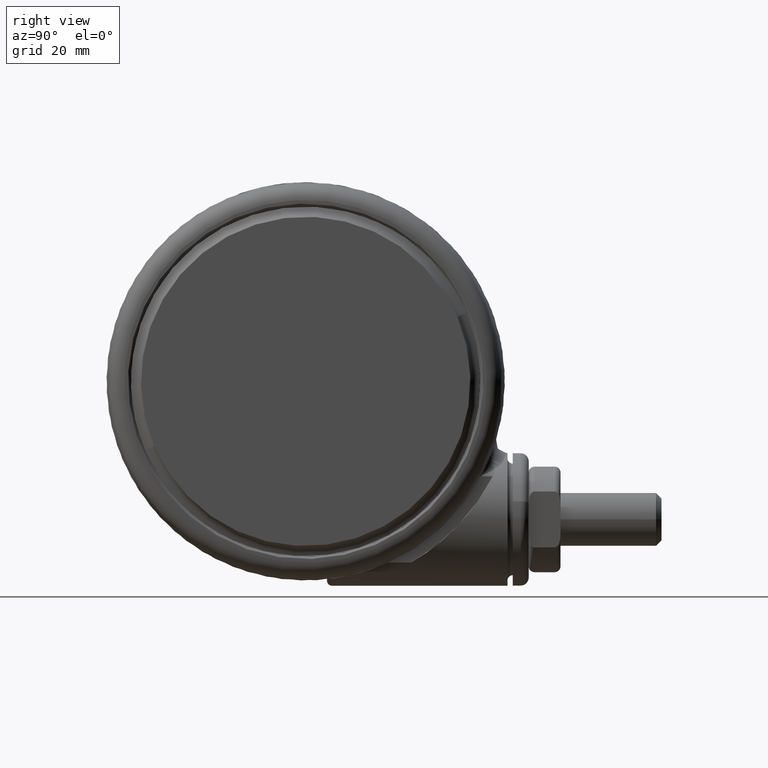
[diagram: clean part render]
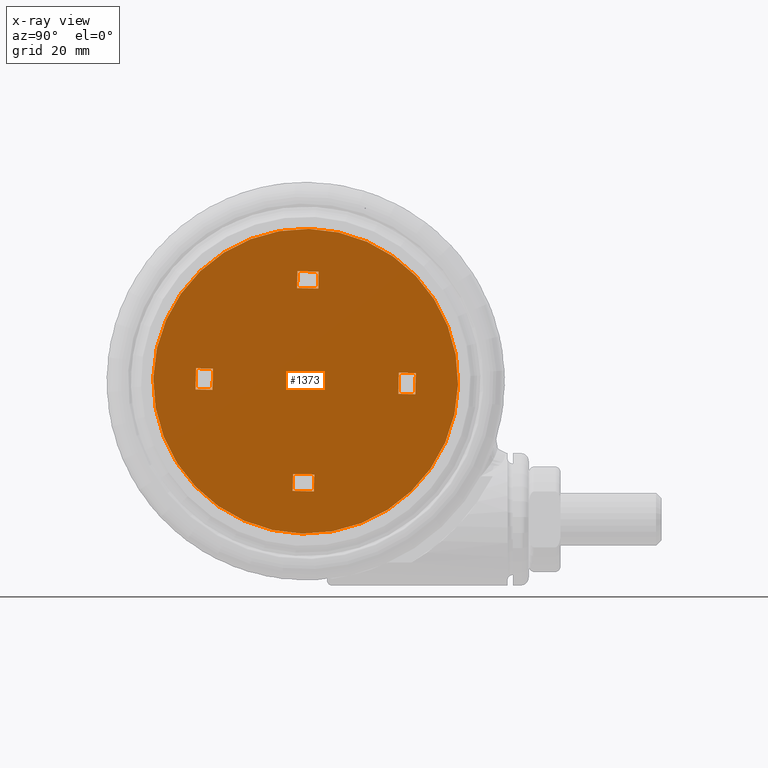
[diagram: x-ray — body ghosted, one internal face saturated and labeled with its STEP entity id]
A machine part, right view, then the same camera in x-ray: the body is ghosted and one INTERNAL B-rep face — a face not visible from any outside direction — is saturated and labeled: STEP entity #1373.
In plain terms, the highlighted planar face has unit normal (-1, 0, 0).
Its self-contained STEP definition (entity closure, byte-faithful):
#628 = VECTOR ( 'NONE', #2853, 1000.000000000000100 ) ;
#698 = VERTEX_POINT ( 'NONE', #54919 ) ;
#1235 = CARTESIAN_POINT ( 'NONE',  ( -5.386768670268367000, -16.76999473145464800, -46.19999999999985400 ) ) ;
#1260 = VECTOR ( 'NONE', #27845, 1000.000000000000100 ) ;
#1373 = ADVANCED_FACE ( 'NONE', ( #53502, #41621, #7296, #17824, #19211 ), #26613, .F. ) ;
#1841 = ORIENTED_EDGE ( 'NONE', *, *, #33197, .T. ) ;
#2058 = EDGE_LOOP ( 'NONE', ( #44789, #1841, #46014, #36267 ) ) ;
#2202 = CARTESIAN_POINT ( 'NONE',  ( -18.03803863379574300, 10.34983875457449200, -46.19999999999985400 ) ) ;
#2546 = DIRECTION ( 'NONE',  ( 0.4119530739487650100, 0.9112050619175484600, 0.0000000000000000000 ) ) ;
#2723 = LINE ( 'NONE', #17350, #48980 ) ;
#2853 = DIRECTION ( 'NONE',  ( 0.9112050619175470200, -0.4119530739487681800, -0.0000000000000000000 ) ) ;
#2865 = VERTEX_POINT ( 'NONE', #46619 ) ;
#4197 = DIRECTION ( 'NONE',  ( -0.9112050619175442500, 0.4119530739487745600, -0.0000000000000000000 ) ) ;
#4211 = CARTESIAN_POINT ( 'NONE',  ( -10.34983875457461800, -18.03803863379573600, -46.19999999999985400 ) ) ;
#4230 = CARTESIAN_POINT ( 'NONE',  ( -16.76999473145465200, 5.386768670268250700, -46.19999999999985400 ) ) ;
#4300 = DIRECTION ( 'NONE',  ( 0.4119530739487650100, 0.9112050619175484600, 0.0000000000000000000 ) ) ;
#4673 = ORIENTED_EDGE ( 'NONE', *, *, #35558, .T. ) ;
#5007 = CARTESIAN_POINT ( 'NONE',  ( -16.76999473145465200, 5.386768670268250700, -46.19999999999985400 ) ) ;
#5446 = VERTEX_POINT ( 'NONE', #5007 ) ;
#5802 = VERTEX_POINT ( 'NONE', #53313 ) ;
#6033 = CARTESIAN_POINT ( 'NONE',  ( -2.081668171172168500E-014, -4.163336342344337000E-014, -46.19999999999985400 ) ) ;
#6046 = VERTEX_POINT ( 'NONE', #1235 ) ;
#6818 = CARTESIAN_POINT ( 'NONE',  ( 10.34983875457470900, 18.03803863379559000, -46.19999999999985400 ) ) ;
#6892 = AXIS2_PLACEMENT_3D ( 'NONE', #6033, #37373, #10546 ) ;
#7296 = FACE_BOUND ( 'NONE', #42092, .T. ) ;
#7697 = LINE ( 'NONE', #51248, #19616 ) ;
#7939 = LINE ( 'NONE', #31039, #31785 ) ;
#8374 = VECTOR ( 'NONE', #49545, 1000.000000000000100 ) ;
#9231 = CARTESIAN_POINT ( 'NONE',  ( -17.12683357187819400, 9.937885680625726100, -46.19999999999985400 ) ) ;
#10207 = LINE ( 'NONE', #18998, #44579 ) ;
#10546 = DIRECTION ( 'NONE',  ( 0.4119530739487650100, 0.9112050619175484600, 0.0000000000000000000 ) ) ;
#10694 = VERTEX_POINT ( 'NONE', #24780 ) ;
#11486 = CARTESIAN_POINT ( 'NONE',  ( 18.03803863379570400, -10.34983875457457500, -46.19999999999985400 ) ) ;
#11568 = CARTESIAN_POINT ( 'NONE',  ( -9.031588917938561800, -15.12218243565958900, -46.19999999999985400 ) ) ;
#11920 = CARTESIAN_POINT ( 'NONE',  ( -5.386768670268367000, -16.76999473145464800, -46.19999999999985400 ) ) ;
#12027 = VECTOR ( 'NONE', #53773, 1000.000000000000100 ) ;
#12099 = ORIENTED_EDGE ( 'NONE', *, *, #24574, .T. ) ;
#12249 = CARTESIAN_POINT ( 'NONE',  ( 6.705018506904514700, 19.68585092959065400, -46.19999999999985400 ) ) ;
#12480 = ORIENTED_EDGE ( 'NONE', *, *, #40452, .F. ) ;
#12527 = EDGE_LOOP ( 'NONE', ( #54499, #17405 ) ) ;
#12888 = DIRECTION ( 'NONE',  ( 0.4119530739487742300, 0.9112050619175443600, 0.0000000000000000000 ) ) ;
#14197 = ORIENTED_EDGE ( 'NONE', *, *, #57391, .T. ) ;
#14529 = DIRECTION ( 'NONE',  ( 0.9112050619175485800, -0.4119530739487646800, 0.0000000000000000000 ) ) ;
#14679 = LINE ( 'NONE', #40286, #47545 ) ;
#15237 = LINE ( 'NONE', #6818, #28515 ) ;
#17350 = CARTESIAN_POINT ( 'NONE',  ( 9.937885680625933900, 17.12683357187804800, -46.19999999999985400 ) ) ;
#17405 = ORIENTED_EDGE ( 'NONE', *, *, #22421, .T. ) ;
#17476 = DIRECTION ( 'NONE',  ( 0.4119530739487650100, 0.9112050619175484600, -0.0000000000000000000 ) ) ;
#17759 = DIRECTION ( 'NONE',  ( -0.9112050619175470200, 0.4119530739487681800, -0.0000000000000000000 ) ) ;
#17824 = FACE_BOUND ( 'NONE', #2058, .T. ) ;
#18909 = LINE ( 'NONE', #9231, #8374 ) ;
#18998 = CARTESIAN_POINT ( 'NONE',  ( 17.12683357187815500, -9.937885680625809600, -46.19999999999985400 ) ) ;
#19211 = FACE_BOUND ( 'NONE', #54201, .T. ) ;
#19616 = VECTOR ( 'NONE', #28933, 1000.000000000000100 ) ;
#20869 = ORIENTED_EDGE ( 'NONE', *, *, #43993, .F. ) ;
#21102 = VERTEX_POINT ( 'NONE', #28609 ) ;
#22421 = EDGE_CURVE ( 'NONE', #5802, #46054, #48767, .T. ) ;
#22871 = EDGE_CURVE ( 'NONE', #46054, #5802, #41039, .T. ) ;
#23031 = LINE ( 'NONE', #11920, #628 ) ;
#23885 = LINE ( 'NONE', #31286, #12027 ) ;
#24574 = EDGE_CURVE ( 'NONE', #31820, #5446, #50526, .T. ) ;
#24780 = CARTESIAN_POINT ( 'NONE',  ( 18.03803863379570400, -10.34983875457457500, -46.19999999999985400 ) ) ;
#25124 = VECTOR ( 'NONE', #17759, 1000.000000000000100 ) ;
#25814 = VECTOR ( 'NONE', #51554, 1000.000000000000100 ) ;
#26613 = PLANE ( 'NONE',  #38507 ) ;
#27230 = EDGE_CURVE ( 'NONE', #53584, #21102, #42580, .T. ) ;
#27845 = DIRECTION ( 'NONE',  ( -0.9112050619175485800, 0.4119530739487646800, 0.0000000000000000000 ) ) ;
#28042 = CARTESIAN_POINT ( 'NONE',  ( 16.76999473145461300, -5.386768670268334200, -46.19999999999985400 ) ) ;
#28515 = VECTOR ( 'NONE', #33656, 1000.000000000000100 ) ;
#28609 = CARTESIAN_POINT ( 'NONE',  ( 5.386768670268434500, 16.76999473145451700, -46.19999999999985400 ) ) ;
#28619 = ORIENTED_EDGE ( 'NONE', *, *, #37642, .T. ) ;
#28933 = DIRECTION ( 'NONE',  ( 0.4119530739487650100, 0.9112050619175484600, -0.0000000000000000000 ) ) ;
#29377 = DIRECTION ( 'NONE',  ( -0.0000000000000000000, -0.0000000000000000000, 1.000000000000000000 ) ) ;
#31039 = CARTESIAN_POINT ( 'NONE',  ( 5.386768670268434500, 16.76999473145451700, -46.19999999999985400 ) ) ;
#31133 = DIRECTION ( 'NONE',  ( 0.0000000000000000000, 0.0000000000000000000, -1.000000000000000000 ) ) ;
#31286 = CARTESIAN_POINT ( 'NONE',  ( -9.937885680625848700, -17.12683357187818700, -46.19999999999985400 ) ) ;
#31785 = VECTOR ( 'NONE', #4197, 1000.000000000000100 ) ;
#31818 = VERTEX_POINT ( 'NONE', #35921 ) ;
#31820 = VERTEX_POINT ( 'NONE', #40427 ) ;
#32356 = CARTESIAN_POINT ( 'NONE',  ( 18.77464586767321500, -6.293065432955616600, -46.19999999999985400 ) ) ;
#32441 = CARTESIAN_POINT ( 'NONE',  ( 11.82305322232953600, 26.15158527703360400, -46.19999999999985400 ) ) ;
#32543 = EDGE_CURVE ( 'NONE', #698, #52043, #7697, .T. ) ;
#33197 = EDGE_CURVE ( 'NONE', #45719, #6046, #23031, .T. ) ;
#33656 = DIRECTION ( 'NONE',  ( 0.9112050619175442500, -0.4119530739487745600, -0.0000000000000000000 ) ) ;
#33936 = ORIENTED_EDGE ( 'NONE', *, *, #27230, .F. ) ;
#34536 = VERTEX_POINT ( 'NONE', #54382 ) ;
#35558 = EDGE_CURVE ( 'NONE', #53584, #31818, #15237, .T. ) ;
#35582 = DIRECTION ( 'NONE',  ( -0.4119530739487650100, -0.9112050619175484600, -0.0000000000000000000 ) ) ;
#35921 = CARTESIAN_POINT ( 'NONE',  ( 10.34983875457470900, 18.03803863379559000, -46.19999999999985400 ) ) ;
#36267 = ORIENTED_EDGE ( 'NONE', *, *, #41761, .T. ) ;
#36991 = VECTOR ( 'NONE', #17476, 1000.000000000000100 ) ;
#37023 = LINE ( 'NONE', #32356, #1260 ) ;
#37085 = LINE ( 'NONE', #4211, #25124 ) ;
#37373 = DIRECTION ( 'NONE',  ( -0.0000000000000000000, -0.0000000000000000000, 1.000000000000000000 ) ) ;
#37642 = EDGE_CURVE ( 'NONE', #54095, #21102, #7939, .T. ) ;
#38507 = AXIS2_PLACEMENT_3D ( 'NONE', #39980, #31133, #4300 ) ;
#38645 = VECTOR ( 'NONE', #35582, 1000.000000000000100 ) ;
#39167 = LINE ( 'NONE', #47086, #25814 ) ;
#39194 = CARTESIAN_POINT ( 'NONE',  ( -10.34983875457461800, -18.03803863379573600, -46.19999999999985400 ) ) ;
#39378 = CARTESIAN_POINT ( 'NONE',  ( 9.031588917938629300, 15.12218243565945600, -46.19999999999985400 ) ) ;
#39613 = EDGE_CURVE ( 'NONE', #45719, #55481, #23885, .T. ) ;
#39792 = VECTOR ( 'NONE', #53298, 1000.000000000000100 ) ;
#39852 = CARTESIAN_POINT ( 'NONE',  ( 6.293065432955740100, 18.77464586767311200, -46.19999999999985400 ) ) ;
#39980 = CARTESIAN_POINT ( 'NONE',  ( -2.081668171172168500E-014, -4.163336342344337000E-014, -46.19999999999985400 ) ) ;
#40286 = CARTESIAN_POINT ( 'NONE',  ( -18.77464586767325700, 6.293065432955533100, -46.19999999999985400 ) ) ;
#40427 = CARTESIAN_POINT ( 'NONE',  ( -15.12218243565959200, 9.031588917938444500, -46.19999999999985400 ) ) ;
#40452 = EDGE_CURVE ( 'NONE', #31820, #52043, #18909, .T. ) ;
#41039 = CIRCLE ( 'NONE', #6892, 28.70000000000000300 ) ;
#41621 = FACE_BOUND ( 'NONE', #52632, .T. ) ;
#41667 = ORIENTED_EDGE ( 'NONE', *, *, #32543, .T. ) ;
#41761 = EDGE_CURVE ( 'NONE', #51124, #55481, #37085, .T. ) ;
#41791 = EDGE_CURVE ( 'NONE', #698, #5446, #14679, .T. ) ;
#42003 = EDGE_CURVE ( 'NONE', #51124, #6046, #39167, .T. ) ;
#42073 = ORIENTED_EDGE ( 'NONE', *, *, #41791, .F. ) ;
#42092 = EDGE_LOOP ( 'NONE', ( #42846, #14197, #20869, #54213 ) ) ;
#42357 = EDGE_CURVE ( 'NONE', #2865, #49598, #37023, .T. ) ;
#42580 = LINE ( 'NONE', #39852, #39792 ) ;
#42793 = DIRECTION ( 'NONE',  ( -0.4119530739487650100, -0.9112050619175484600, -0.0000000000000000000 ) ) ;
#42846 = ORIENTED_EDGE ( 'NONE', *, *, #42357, .F. ) ;
#43463 = CARTESIAN_POINT ( 'NONE',  ( -6.705018506904424100, -19.68585092959079900, -46.19999999999985400 ) ) ;
#43991 = ORIENTED_EDGE ( 'NONE', *, *, #47218, .F. ) ;
#43993 = EDGE_CURVE ( 'NONE', #34536, #10694, #10207, .T. ) ;
#44579 = VECTOR ( 'NONE', #14529, 1000.000000000000100 ) ;
#44599 = DIRECTION ( 'NONE',  ( 0.9112050619175485800, -0.4119530739487646800, 0.0000000000000000000 ) ) ;
#44789 = ORIENTED_EDGE ( 'NONE', *, *, #39613, .F. ) ;
#45301 = VECTOR ( 'NONE', #42793, 1000.000000000000100 ) ;
#45719 = VERTEX_POINT ( 'NONE', #11568 ) ;
#46014 = ORIENTED_EDGE ( 'NONE', *, *, #42003, .F. ) ;
#46054 = VERTEX_POINT ( 'NONE', #32441 ) ;
#46266 = AXIS2_PLACEMENT_3D ( 'NONE', #56200, #29377, #2546 ) ;
#46619 = CARTESIAN_POINT ( 'NONE',  ( 19.68585092959076400, -6.705018506904381500, -46.19999999999985400 ) ) ;
#47086 = CARTESIAN_POINT ( 'NONE',  ( -6.293065432955654800, -18.77464586767325000, -46.19999999999985400 ) ) ;
#47218 = EDGE_CURVE ( 'NONE', #54095, #31818, #2723, .T. ) ;
#47545 = VECTOR ( 'NONE', #44599, 1000.000000000000100 ) ;
#48767 = CIRCLE ( 'NONE', #46266, 28.70000000000000300 ) ;
#48869 = LINE ( 'NONE', #57580, #36991 ) ;
#48980 = VECTOR ( 'NONE', #12888, 1000.000000000000100 ) ;
#49545 = DIRECTION ( 'NONE',  ( -0.9112050619175485800, 0.4119530739487646800, 0.0000000000000000000 ) ) ;
#49598 = VERTEX_POINT ( 'NONE', #28042 ) ;
#50526 = LINE ( 'NONE', #4230, #38645 ) ;
#51124 = VERTEX_POINT ( 'NONE', #43463 ) ;
#51248 = CARTESIAN_POINT ( 'NONE',  ( -18.03803863379574300, 10.34983875457449200, -46.19999999999985400 ) ) ;
#51554 = DIRECTION ( 'NONE',  ( 0.4119530739487678500, 0.9112050619175471300, 0.0000000000000000000 ) ) ;
#52043 = VERTEX_POINT ( 'NONE', #2202 ) ;
#52632 = EDGE_LOOP ( 'NONE', ( #42073, #41667, #12480, #12099 ) ) ;
#53298 = DIRECTION ( 'NONE',  ( -0.4119530739487742300, -0.9112050619175443600, 0.0000000000000000000 ) ) ;
#53313 = CARTESIAN_POINT ( 'NONE',  ( -11.82305322232957500, -26.15158527703368600, -46.19999999999985400 ) ) ;
#53502 = FACE_OUTER_BOUND ( 'NONE', #12527, .T. ) ;
#53584 = VERTEX_POINT ( 'NONE', #12249 ) ;
#53773 = DIRECTION ( 'NONE',  ( -0.4119530739487678500, -0.9112050619175471300, 0.0000000000000000000 ) ) ;
#54095 = VERTEX_POINT ( 'NONE', #39378 ) ;
#54201 = EDGE_LOOP ( 'NONE', ( #43991, #28619, #33936, #4673 ) ) ;
#54213 = ORIENTED_EDGE ( 'NONE', *, *, #56548, .T. ) ;
#54382 = CARTESIAN_POINT ( 'NONE',  ( 15.12218243565955200, -9.031588917938528000, -46.19999999999985400 ) ) ;
#54499 = ORIENTED_EDGE ( 'NONE', *, *, #22871, .T. ) ;
#54919 = CARTESIAN_POINT ( 'NONE',  ( -19.68585092959080600, 6.705018506904298000, -46.19999999999985400 ) ) ;
#55481 = VERTEX_POINT ( 'NONE', #39194 ) ;
#56200 = CARTESIAN_POINT ( 'NONE',  ( -2.081668171172168500E-014, -4.163336342344337000E-014, -46.19999999999985400 ) ) ;
#56548 = EDGE_CURVE ( 'NONE', #34536, #49598, #48869, .T. ) ;
#57175 = LINE ( 'NONE', #11486, #45301 ) ;
#57391 = EDGE_CURVE ( 'NONE', #2865, #10694, #57175, .T. ) ;
#57580 = CARTESIAN_POINT ( 'NONE',  ( 16.76999473145461300, -5.386768670268334200, -46.19999999999985400 ) ) ;